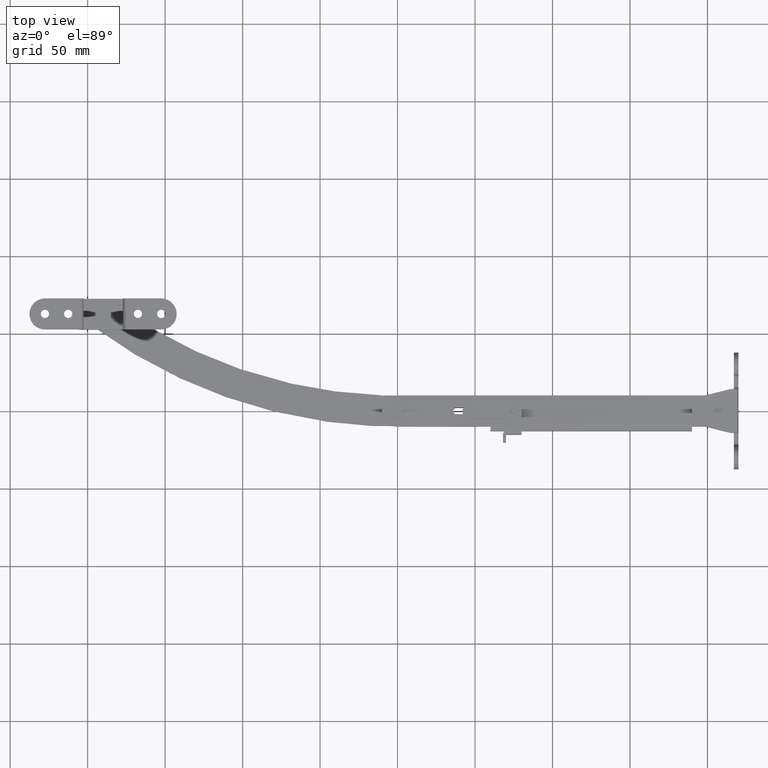
[diagram: clean part render]
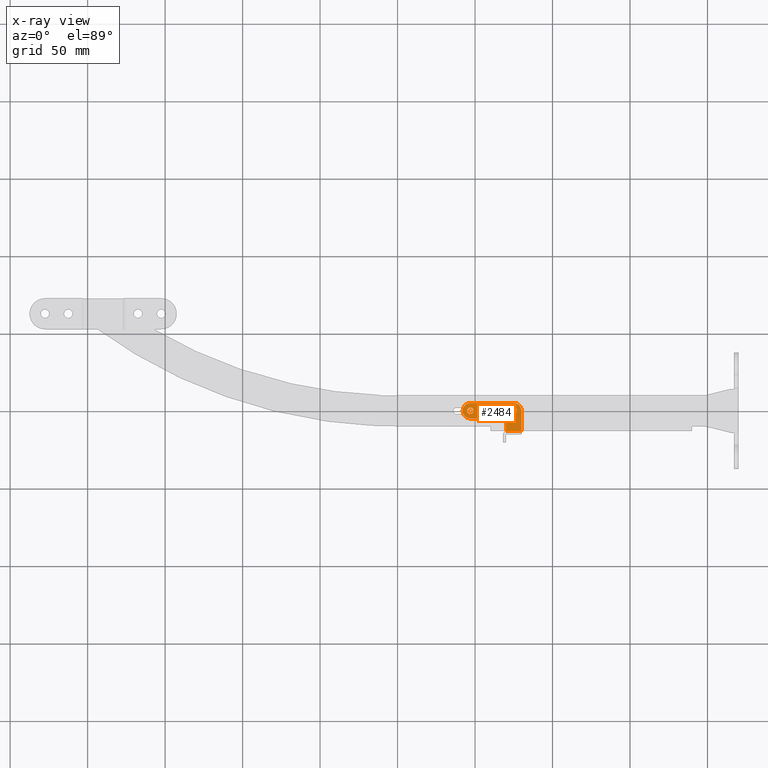
[diagram: x-ray — body ghosted, one internal face saturated and labeled with its STEP entity id]
A machine part, top view, then the same camera in x-ray: the body is ghosted and one INTERNAL B-rep face — a face not visible from any outside direction — is saturated and labeled: STEP entity #2484.
In plain terms, the highlighted face is a freeform B-spline surface patch.
Its self-contained STEP definition (entity closure, byte-faithful):
#1438=CARTESIAN_POINT('',(-127.050000000000000,0.0,7.149993999999830));
#1439=VERTEX_POINT('',#1438);
#1440=CARTESIAN_POINT('',(-125.160841155352900,-2.043680533435875,7.149993999999830));
#1441=VERTEX_POINT('',#1440);
#1442=CARTESIAN_POINT('',(-127.050000000000000,0.0,7.149993999999830));
#1443=CARTESIAN_POINT('',(-127.050000000000010,-1.895000490951087,7.149993999999831));
#1444=CARTESIAN_POINT('',(-125.160841155352870,-2.043680533435876,7.149993999999830));
#1452=(BOUNDED_CURVE()B_SPLINE_CURVE(2,(#1442,#1443,#1444),.UNSPECIFIED.,.F.,.U.)B_SPLINE_CURVE_WITH_KNOTS((3,3),(0.0,0.236331299104331),.UNSPECIFIED.)CURVE()GEOMETRIC_REPRESENTATION_ITEM()RATIONAL_B_SPLINE_CURVE((1.0,0.723120660395871,0.969723352982086))REPRESENTATION_ITEM(''));
#1453=EDGE_CURVE('',#1439,#1441,#1452,.T.);
#1455=CARTESIAN_POINT('',(-124.839158844647100,2.043680533435874,7.149993999999831));
#1456=VERTEX_POINT('',#1455);
#1457=CARTESIAN_POINT('',(-124.839158844647090,2.043680533435874,7.149993999999831));
#1458=CARTESIAN_POINT('',(-124.919455271481170,2.050000000000000,7.149993999999830));
#1459=CARTESIAN_POINT('',(-125.0,2.050000000000000,7.149993999999830));
#1460=CARTESIAN_POINT('',(-127.050000000000010,2.050000000000001,7.149993999999830));
#1461=CARTESIAN_POINT('',(-127.050000000000000,0.0,7.149993999999830));
#1469=(BOUNDED_CURVE()B_SPLINE_CURVE(2,(#1457,#1458,#1459,#1460,#1461),.UNSPECIFIED.,.F.,.U.)B_SPLINE_CURVE_WITH_KNOTS((3,2,3),(0.736331299104330,0.750000000000000,1.0),.UNSPECIFIED.)CURVE()GEOMETRIC_REPRESENTATION_ITEM()RATIONAL_B_SPLINE_CURVE((0.969723352982083,0.983986120790675,1.0,0.707106781186547,1.0))REPRESENTATION_ITEM(''));
#1470=EDGE_CURVE('',#1456,#1439,#1469,.T.);
#1537=CARTESIAN_POINT('',(-122.950000000000000,0.0,7.149993999999830));
#1538=VERTEX_POINT('',#1537);
#1539=CARTESIAN_POINT('',(-125.160841155352870,-2.043680533435876,7.149993999999830));
#1540=CARTESIAN_POINT('',(-125.080544728518860,-2.050000000000001,7.149993999999830));
#1541=CARTESIAN_POINT('',(-125.0,-2.050000000000000,7.149993999999830));
#1542=CARTESIAN_POINT('',(-122.950000000000030,-2.050000000000001,7.149993999999830));
#1543=CARTESIAN_POINT('',(-122.950000000000000,0.0,7.149993999999830));
#1551=(BOUNDED_CURVE()B_SPLINE_CURVE(2,(#1539,#1540,#1541,#1542,#1543),.UNSPECIFIED.,.F.,.U.)B_SPLINE_CURVE_WITH_KNOTS((3,2,3),(0.236331299104331,0.250000000000000,0.500000000000000),.UNSPECIFIED.)CURVE()GEOMETRIC_REPRESENTATION_ITEM()RATIONAL_B_SPLINE_CURVE((0.969723352982086,0.983986120790677,1.0,0.707106781186547,1.0))REPRESENTATION_ITEM(''));
#1552=EDGE_CURVE('',#1441,#1538,#1551,.T.);
#1586=CARTESIAN_POINT('',(-122.950000000000000,0.0,7.149993999999830));
#1587=CARTESIAN_POINT('',(-122.950000000000030,1.895000490951062,7.149993999999831));
#1588=CARTESIAN_POINT('',(-124.839158844647120,2.043680533435874,7.149993999999831));
#1596=(BOUNDED_CURVE()B_SPLINE_CURVE(2,(#1586,#1587,#1588),.UNSPECIFIED.,.F.,.U.)B_SPLINE_CURVE_WITH_KNOTS((3,3),(0.500000000000000,0.736331299104329),.UNSPECIFIED.)CURVE()GEOMETRIC_REPRESENTATION_ITEM()RATIONAL_B_SPLINE_CURVE((1.0,0.723120660395873,0.969723352982082))REPRESENTATION_ITEM(''));
#1597=EDGE_CURVE('',#1538,#1456,#1596,.T.);
#1802=CARTESIAN_POINT('',(-155.049969000000000,0.0,7.149993999999830));
#1803=VERTEX_POINT('',#1802);
#1804=CARTESIAN_POINT('',(-153.160810155352890,-2.043680533435874,7.149993999999830));
#1805=VERTEX_POINT('',#1804);
#1806=CARTESIAN_POINT('',(-155.049969000000000,0.0,7.149993999999830));
#1807=CARTESIAN_POINT('',(-155.049969000000000,-1.895000490951062,7.149993999999829));
#1808=CARTESIAN_POINT('',(-153.160810155352950,-2.043680533435874,7.149993999999830));
#1816=(BOUNDED_CURVE()B_SPLINE_CURVE(2,(#1806,#1807,#1808),.UNSPECIFIED.,.F.,.U.)B_SPLINE_CURVE_WITH_KNOTS((3,3),(0.0,0.236331299104329),.UNSPECIFIED.)CURVE()GEOMETRIC_REPRESENTATION_ITEM()RATIONAL_B_SPLINE_CURVE((1.0,0.723120660395873,0.969723352982082))REPRESENTATION_ITEM(''));
#1817=EDGE_CURVE('',#1803,#1805,#1816,.T.);
#1819=CARTESIAN_POINT('',(-152.839127844647090,2.043680533435876,7.149993999999830));
#1820=VERTEX_POINT('',#1819);
#1821=CARTESIAN_POINT('',(-152.839127844647150,2.043680533435876,7.149993999999830));
#1822=CARTESIAN_POINT('',(-152.919424271481200,2.050000000000000,7.149993999999830));
#1823=CARTESIAN_POINT('',(-152.999968999999990,2.050000000000000,7.149993999999830));
#1824=CARTESIAN_POINT('',(-155.049969000000060,2.050000000000001,7.149993999999830));
#1825=CARTESIAN_POINT('',(-155.049969000000000,0.0,7.149993999999830));
#1833=(BOUNDED_CURVE()B_SPLINE_CURVE(2,(#1821,#1822,#1823,#1824,#1825),.UNSPECIFIED.,.F.,.U.)B_SPLINE_CURVE_WITH_KNOTS((3,2,3),(0.736331299104332,0.750000000000000,1.0),.UNSPECIFIED.)CURVE()GEOMETRIC_REPRESENTATION_ITEM()RATIONAL_B_SPLINE_CURVE((0.969723352982088,0.983986120790678,1.0,0.707106781186547,1.0))REPRESENTATION_ITEM(''));
#1834=EDGE_CURVE('',#1820,#1803,#1833,.T.);
#1901=CARTESIAN_POINT('',(-150.949969000000010,0.0,7.149993999999830));
#1902=VERTEX_POINT('',#1901);
#1903=CARTESIAN_POINT('',(-153.160810155352950,-2.043680533435874,7.149993999999830));
#1904=CARTESIAN_POINT('',(-153.080513728518890,-2.050000000000000,7.149993999999830));
#1905=CARTESIAN_POINT('',(-152.999968999999990,-2.050000000000000,7.149993999999830));
#1906=CARTESIAN_POINT('',(-150.949968999999980,-2.050000000000001,7.149993999999830));
#1907=CARTESIAN_POINT('',(-150.949969000000010,0.0,7.149993999999830));
#1915=(BOUNDED_CURVE()B_SPLINE_CURVE(2,(#1903,#1904,#1905,#1906,#1907),.UNSPECIFIED.,.F.,.U.)B_SPLINE_CURVE_WITH_KNOTS((3,2,3),(0.236331299104329,0.250000000000000,0.500000000000000),.UNSPECIFIED.)CURVE()GEOMETRIC_REPRESENTATION_ITEM()RATIONAL_B_SPLINE_CURVE((0.969723352982081,0.983986120790674,1.0,0.707106781186547,1.0))REPRESENTATION_ITEM(''));
#1916=EDGE_CURVE('',#1805,#1902,#1915,.T.);
#1950=CARTESIAN_POINT('',(-150.949969000000010,0.0,7.149993999999830));
#1951=CARTESIAN_POINT('',(-150.949968999999950,1.895000490951086,7.149993999999830));
#1952=CARTESIAN_POINT('',(-152.839127844647090,2.043680533435876,7.149993999999830));
#1960=(BOUNDED_CURVE()B_SPLINE_CURVE(2,(#1950,#1951,#1952),.UNSPECIFIED.,.F.,.U.)B_SPLINE_CURVE_WITH_KNOTS((3,3),(0.500000000000000,0.736331299104331),.UNSPECIFIED.)CURVE()GEOMETRIC_REPRESENTATION_ITEM()RATIONAL_B_SPLINE_CURVE((1.0,0.723120660395871,0.969723352982086))REPRESENTATION_ITEM(''));
#1961=EDGE_CURVE('',#1902,#1820,#1960,.T.);
#2381=CARTESIAN_POINT('',(-118.101901622101290,5.914085114381150,7.149993999999881));
#2382=CARTESIAN_POINT('',(-159.898068397137310,5.914085114381150,7.149993999999881));
#2383=CARTESIAN_POINT('',(-118.101901622101290,-14.214088605225170,7.149993999999881));
#2384=CARTESIAN_POINT('',(-159.898068397137310,-14.214088605225170,7.149993999999881));
#2385=B_SPLINE_SURFACE_WITH_KNOTS('',1,1,((#2381,#2383),(#2382,#2384)),.UNSPECIFIED.,.F.,.F.,.U.,(2,2),(2,2),(0.0,41.796166775035999),(0.0,20.128173719606320),.UNSPECIFIED.);
#2386=CARTESIAN_POINT('',(-130.0,-7.0,7.149993999999830));
#2387=VERTEX_POINT('',#2386);
#2388=CARTESIAN_POINT('',(-130.0,-13.300002999999800,7.149993999999881));
#2389=VERTEX_POINT('',#2388);
#2390=CARTESIAN_POINT('',(-130.0,-7.0,7.149993999999830));
#2391=CARTESIAN_POINT('',(-130.0,-13.300002999999800,7.149993999999881));
#2392=QUASI_UNIFORM_CURVE('',1,(#2390,#2391),.UNSPECIFIED.,.F.,.U.);
#2393=EDGE_CURVE('',#2387,#2389,#2392,.T.);
#2394=ORIENTED_EDGE('',*,*,#2393,.F.);
#2395=CARTESIAN_POINT('',(-132.0,-5.0,7.149993999999830));
#2396=VERTEX_POINT('',#2395);
#2397=CARTESIAN_POINT('',(-130.0,-7.0,7.149993999999830));
#2398=CARTESIAN_POINT('',(-130.0,-5.000000000000001,7.149993999999830));
#2399=CARTESIAN_POINT('',(-132.0,-5.0,7.149993999999830));
#2407=(BOUNDED_CURVE()B_SPLINE_CURVE(2,(#2397,#2398,#2399),.UNSPECIFIED.,.F.,.U.)CURVE()GEOMETRIC_REPRESENTATION_ITEM()QUASI_UNIFORM_CURVE()RATIONAL_B_SPLINE_CURVE((1.0,0.707106781186548,1.0))REPRESENTATION_ITEM(''));
#2408=EDGE_CURVE('',#2387,#2396,#2407,.T.);
#2409=ORIENTED_EDGE('',*,*,#2408,.T.);
#2410=CARTESIAN_POINT('',(-152.999969349065990,-5.0,7.149993999999830));
#2411=VERTEX_POINT('',#2410);
#2412=CARTESIAN_POINT('',(-152.999969349065990,-5.0,7.149993999999830));
#2413=CARTESIAN_POINT('',(-132.0,-5.0,7.149993999999830));
#2414=QUASI_UNIFORM_CURVE('',1,(#2412,#2413),.UNSPECIFIED.,.F.,.U.);
#2415=EDGE_CURVE('',#2411,#2396,#2414,.T.);
#2416=ORIENTED_EDGE('',*,*,#2415,.F.);
#2417=CARTESIAN_POINT('',(-152.999968999999990,5.000000000000110,7.149993999999830));
#2418=VERTEX_POINT('',#2417);
#2419=CARTESIAN_POINT('',(-152.999968999999990,5.0,7.149993999999830));
#2420=CARTESIAN_POINT('',(-157.999968825467080,5.0,7.149993999999831));
#2421=CARTESIAN_POINT('',(-157.999968999999990,0.000000174533003,7.149993999999830));
#2422=CARTESIAN_POINT('',(-157.999969174533020,-4.999999650934000,7.149993999999831));
#2423=CARTESIAN_POINT('',(-152.999969349065990,-4.999999999999988,7.149993999999830));
#2431=(BOUNDED_CURVE()B_SPLINE_CURVE(2,(#2419,#2420,#2421,#2422,#2423),.UNSPECIFIED.,.F.,.U.)B_SPLINE_CURVE_WITH_KNOTS((3,2,3),(0.0,0.500000000000000,1.0),.UNSPECIFIED.)CURVE()GEOMETRIC_REPRESENTATION_ITEM()RATIONAL_B_SPLINE_CURVE((1.0,0.707106793527894,1.0,0.707106793527894,1.0))REPRESENTATION_ITEM(''));
#2432=EDGE_CURVE('',#2418,#2411,#2431,.T.);
#2433=ORIENTED_EDGE('',*,*,#2432,.F.);
#2434=CARTESIAN_POINT('',(-125.000000087266400,5.0,7.149993999999830));
#2435=VERTEX_POINT('',#2434);
#2436=CARTESIAN_POINT('',(-125.000000087266400,5.0,7.149993999999830));
#2437=CARTESIAN_POINT('',(-152.999968999999990,5.000000000000110,7.149993999999830));
#2438=QUASI_UNIFORM_CURVE('',1,(#2436,#2437),.UNSPECIFIED.,.F.,.U.);
#2439=EDGE_CURVE('',#2435,#2418,#2438,.T.);
#2440=ORIENTED_EDGE('',*,*,#2439,.F.);
#2441=CARTESIAN_POINT('',(-120.0,0.0,7.149993999999830));
#2442=VERTEX_POINT('',#2441);
#2443=CARTESIAN_POINT('',(-120.0,0.0,7.149993999999830));
#2444=CARTESIAN_POINT('',(-119.999999999999990,2.071067837425208,7.149993999999830));
#2445=CARTESIAN_POINT('',(-121.464466124920610,3.535533936786065,7.149993999999830));
#2446=CARTESIAN_POINT('',(-122.928932249841210,5.000000036146923,7.149993999999830));
#2447=CARTESIAN_POINT('',(-125.000000087266400,4.999999999999999,7.149993999999830));
#2455=(BOUNDED_CURVE()B_SPLINE_CURVE(2,(#2443,#2444,#2445,#2446,#2447),.UNSPECIFIED.,.F.,.U.)B_SPLINE_CURVE_WITH_KNOTS((3,2,3),(0.0,0.500000000000000,1.0),.UNSPECIFIED.)CURVE()GEOMETRIC_REPRESENTATION_ITEM()RATIONAL_B_SPLINE_CURVE((1.0,0.923879530841517,1.0,0.923879530841517,1.0))REPRESENTATION_ITEM(''));
#2456=EDGE_CURVE('',#2442,#2435,#2455,.T.);
#2457=ORIENTED_EDGE('',*,*,#2456,.F.);
#2458=CARTESIAN_POINT('',(-120.0,-13.300002999999800,7.149993999999881));
#2459=VERTEX_POINT('',#2458);
#2460=CARTESIAN_POINT('',(-120.0,-13.300002999999800,7.149993999999881));
#2461=CARTESIAN_POINT('',(-120.0,0.0,7.149993999999830));
#2462=QUASI_UNIFORM_CURVE('',1,(#2460,#2461),.UNSPECIFIED.,.F.,.U.);
#2463=EDGE_CURVE('',#2459,#2442,#2462,.T.);
#2464=ORIENTED_EDGE('',*,*,#2463,.F.);
#2465=CARTESIAN_POINT('',(-130.0,-13.300002999999800,7.149993999999881));
#2466=CARTESIAN_POINT('',(-120.0,-13.300002999999800,7.149993999999881));
#2467=QUASI_UNIFORM_CURVE('',1,(#2465,#2466),.UNSPECIFIED.,.F.,.U.);
#2468=EDGE_CURVE('',#2389,#2459,#2467,.T.);
#2469=ORIENTED_EDGE('',*,*,#2468,.F.);
#2470=EDGE_LOOP('',(#2394,#2409,#2416,#2433,#2440,#2457,#2464,#2469));
#2471=FACE_OUTER_BOUND('',#2470,.T.);
#2472=ORIENTED_EDGE('',*,*,#1961,.T.);
#2473=ORIENTED_EDGE('',*,*,#1834,.T.);
#2474=ORIENTED_EDGE('',*,*,#1817,.T.);
#2475=ORIENTED_EDGE('',*,*,#1916,.T.);
#2476=EDGE_LOOP('',(#2472,#2473,#2474,#2475));
#2477=FACE_BOUND('',#2476,.T.);
#2478=ORIENTED_EDGE('',*,*,#1597,.T.);
#2479=ORIENTED_EDGE('',*,*,#1470,.T.);
#2480=ORIENTED_EDGE('',*,*,#1453,.T.);
#2481=ORIENTED_EDGE('',*,*,#1552,.T.);
#2482=EDGE_LOOP('',(#2478,#2479,#2480,#2481));
#2483=FACE_BOUND('',#2482,.T.);
#2484=ADVANCED_FACE('',(#2471,#2477,#2483),#2385,.F.);